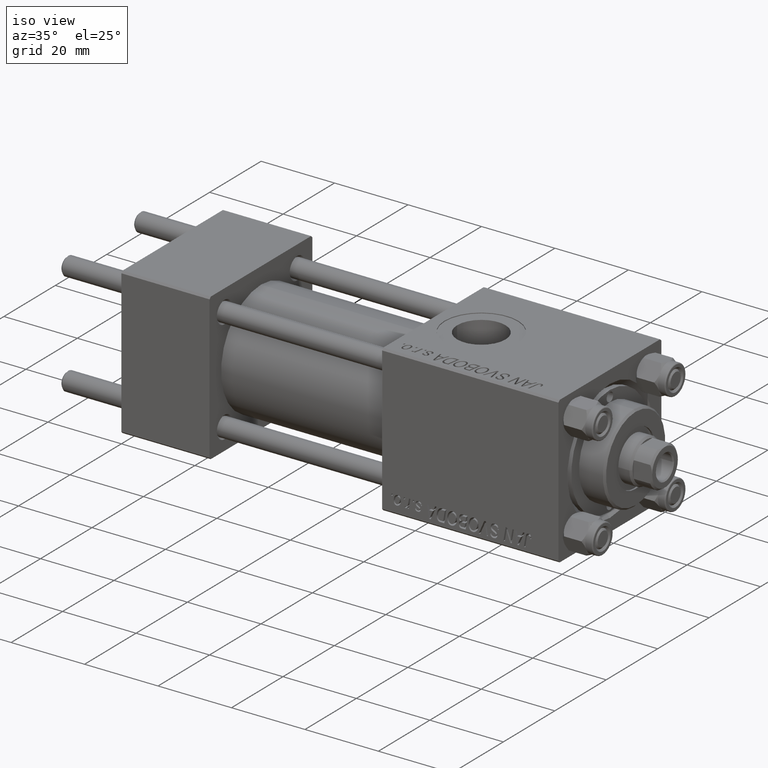
[diagram: clean part render]
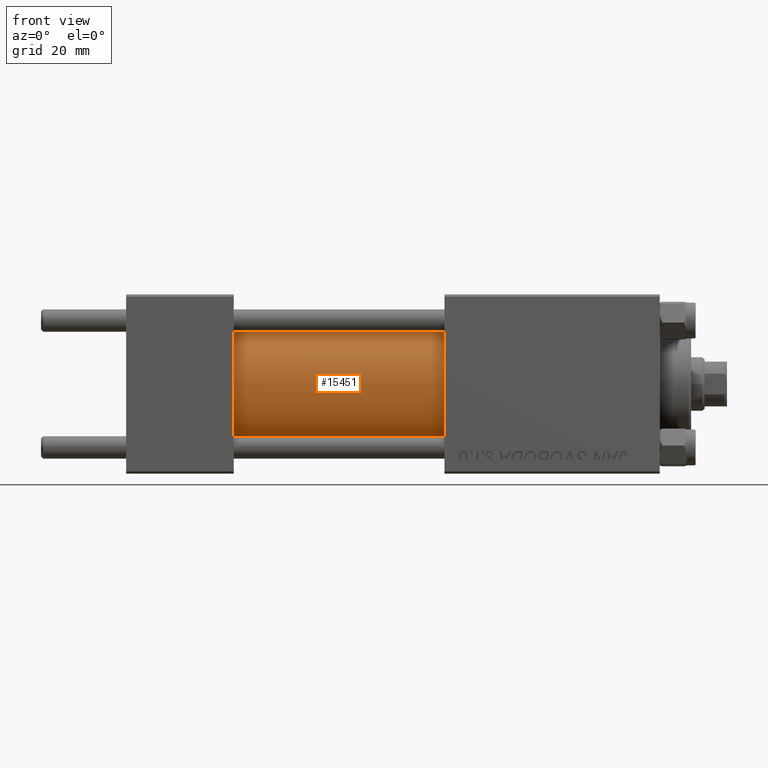
[diagram: tour spotlight — one face highlighted and labeled with its STEP entity id]
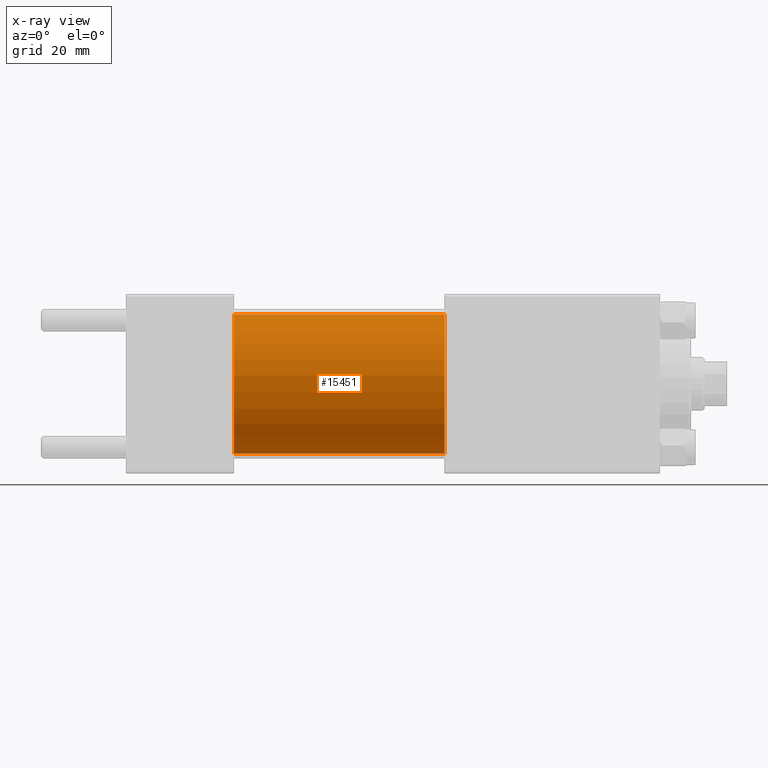
[diagram: x-ray of the same camera — body ghosted, this tour face saturated]
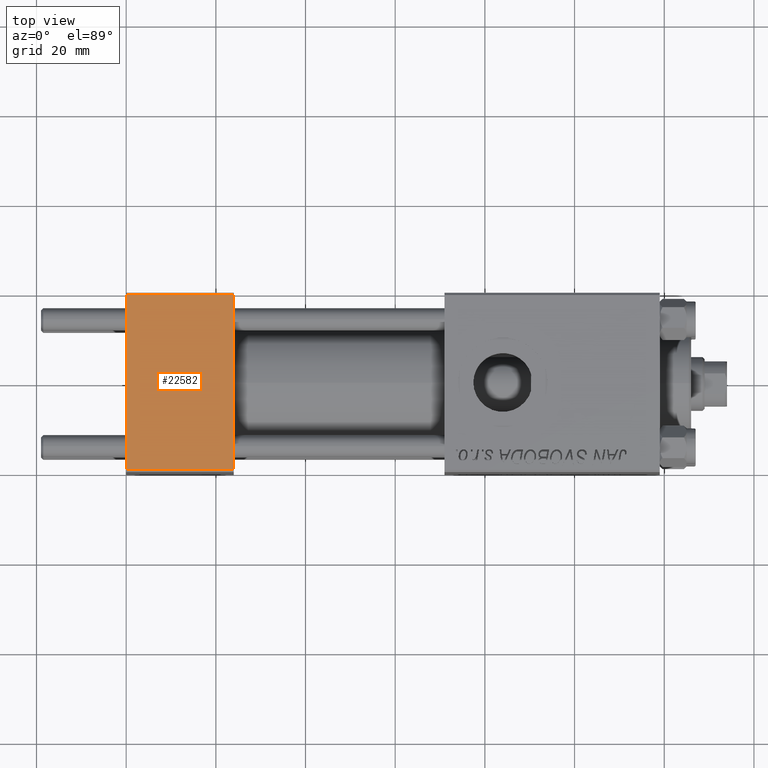
[diagram: tour spotlight — one face highlighted and labeled with its STEP entity id]
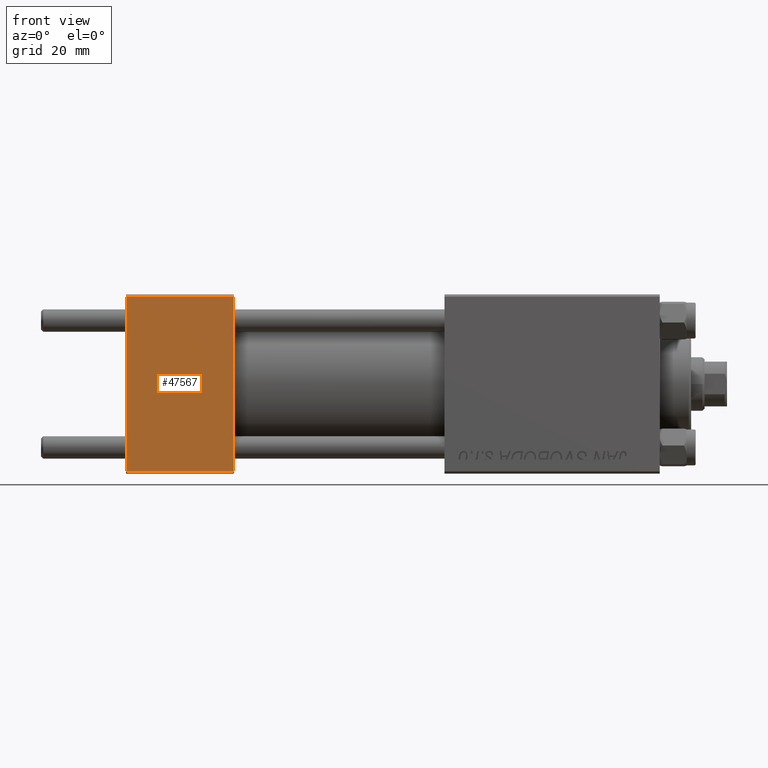
[diagram: tour spotlight — one face highlighted and labeled with its STEP entity id]
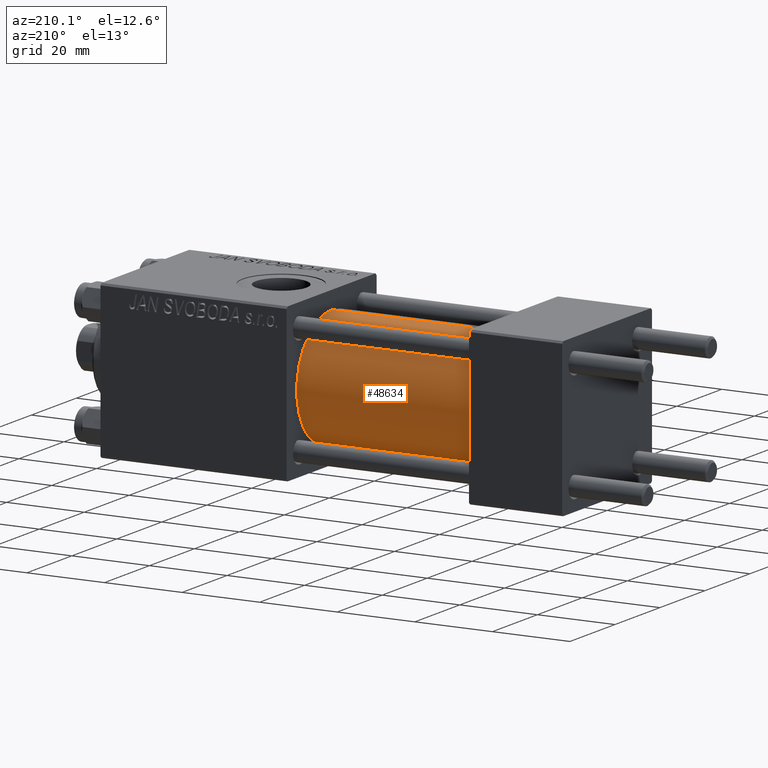
[diagram: tour spotlight — one face highlighted and labeled with its STEP entity id]
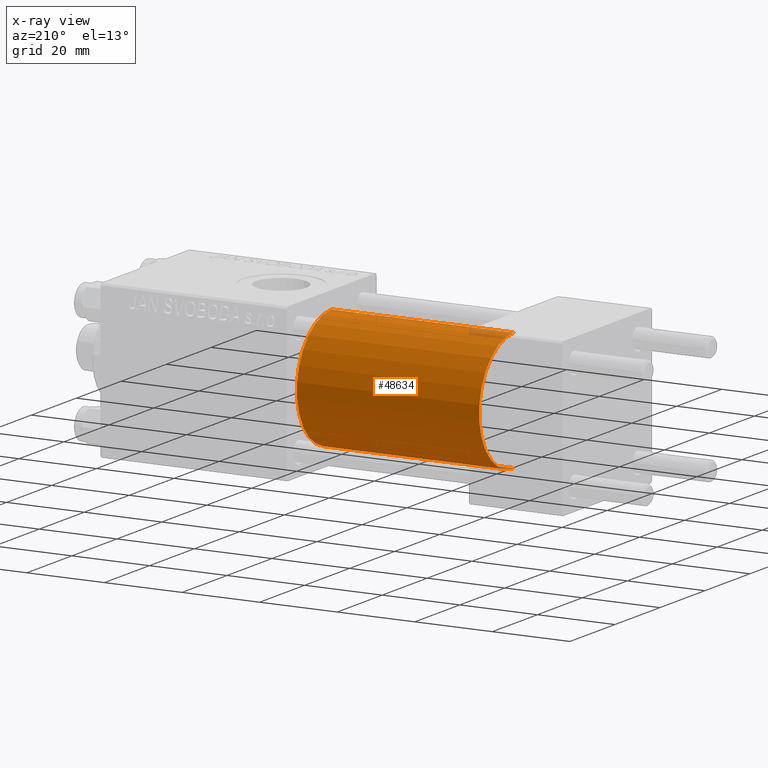
[diagram: x-ray of the same camera — body ghosted, this tour face saturated]
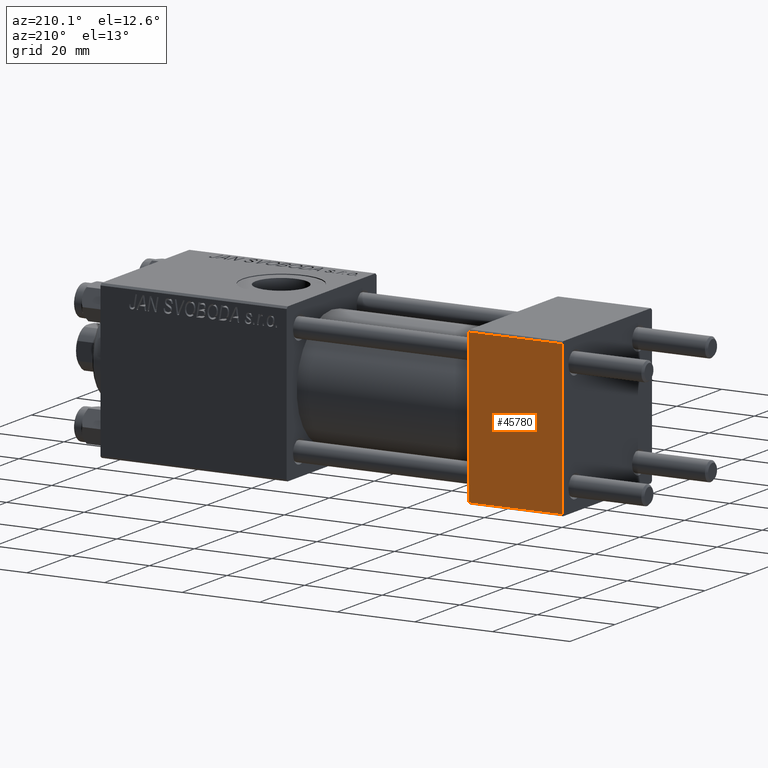
[diagram: tour spotlight — one face highlighted and labeled with its STEP entity id]
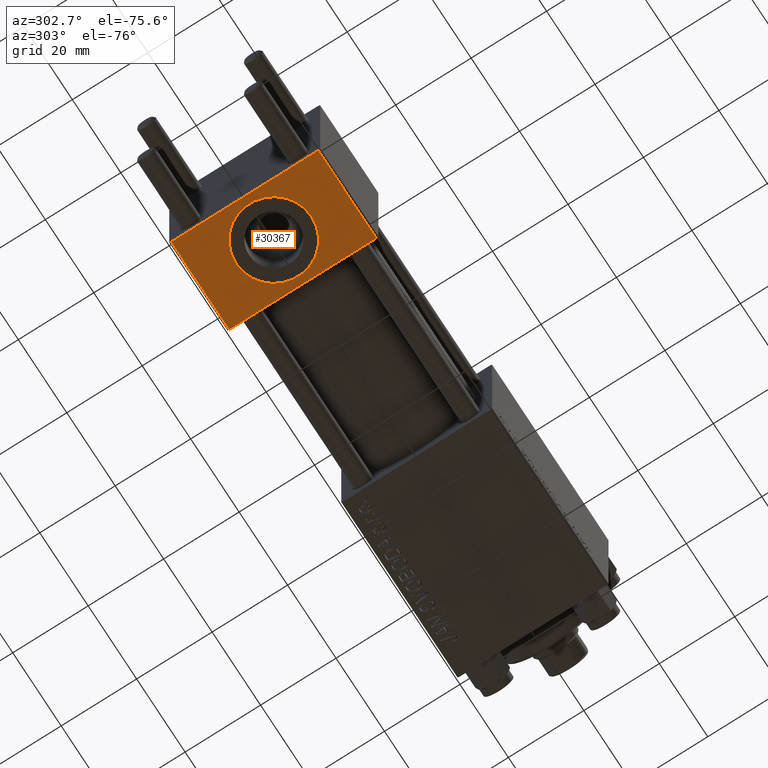
[diagram: tour spotlight — one face highlighted and labeled with its STEP entity id]
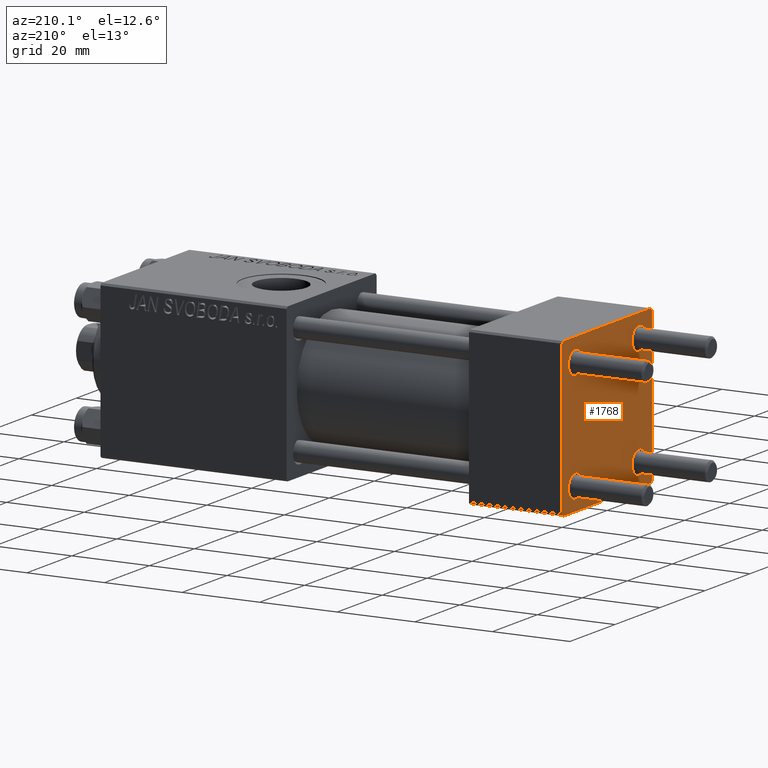
[diagram: tour spotlight — one face highlighted and labeled with its STEP entity id]
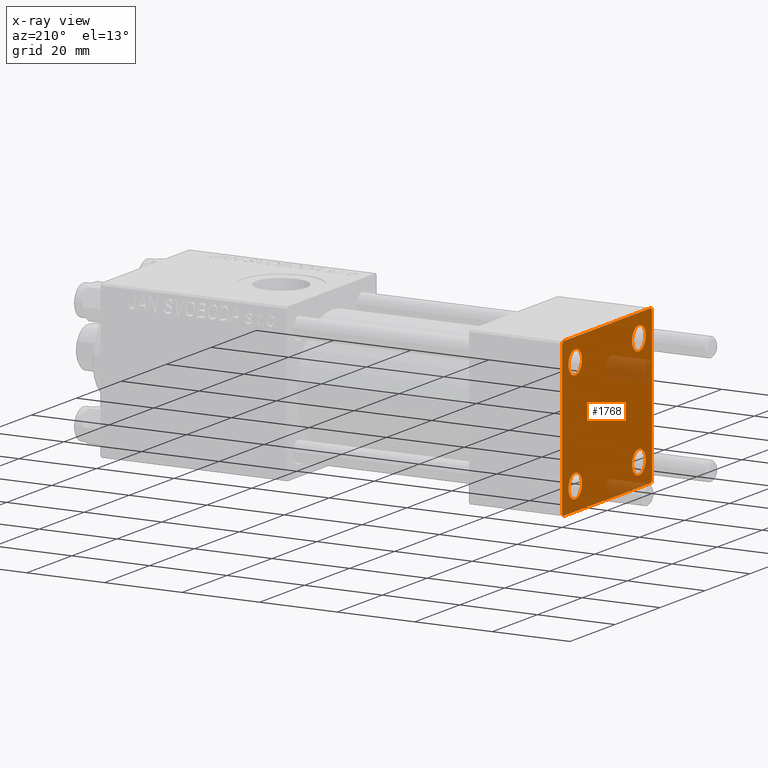
[diagram: x-ray of the same camera — body ghosted, this tour face saturated]
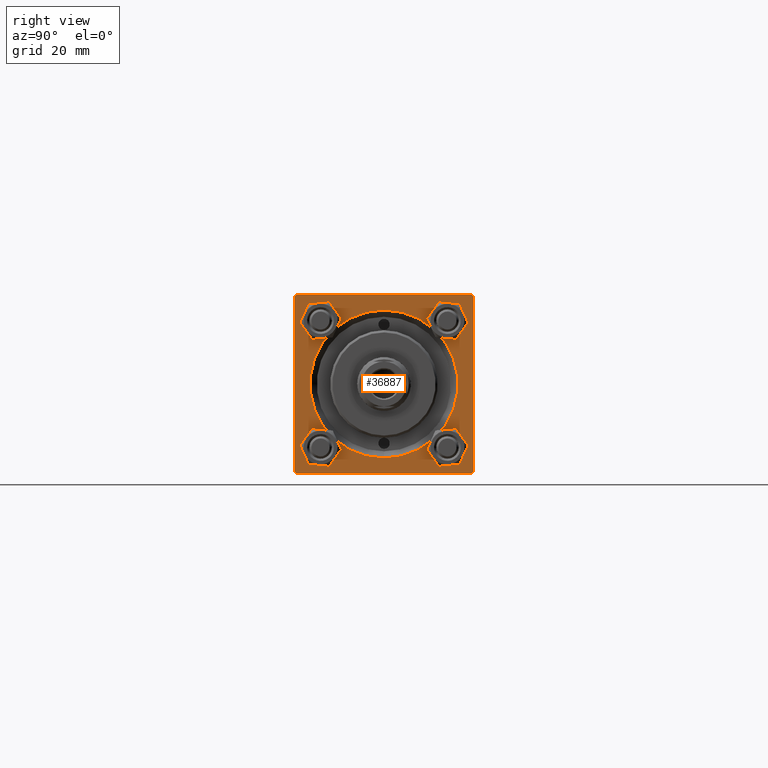
[diagram: tour spotlight — one face highlighted and labeled with its STEP entity id]
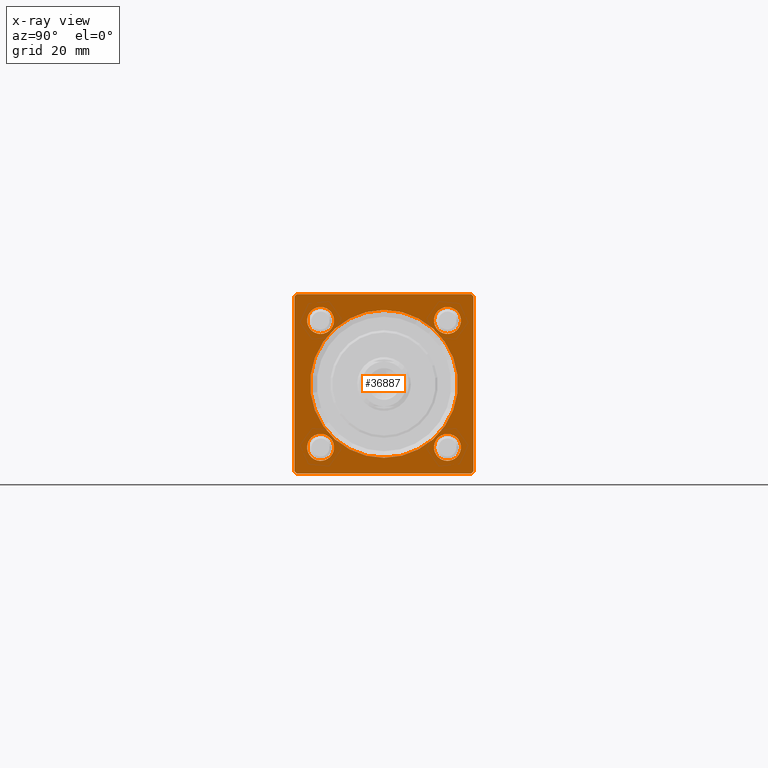
[diagram: x-ray of the same camera — body ghosted, this tour face saturated]
A machine part: a face-by-face anatomy tour. The part has 1137 B-rep faces; the first image is the clean iso view, then the 8 largest visible faces are spotlighted one at a time (largest first), each with its STEP entity span.

Face 1 — front view, entity #15451. An x-ray twin of the same camera follows (body ghosted, this face saturated) — the face is partly hidden behind the body. In plain terms, the highlighted cylindrical surface (partial cylindrical patch) has radius 15.5 mm, axis along (-1, -0, -0).
Definition (entity closure, byte-faithful):
#612 = DIRECTION ( 'NONE',  ( -1.000000000000000000, -0.000000000000000000, -0.000000000000000000 ) ) ;
#1934 = AXIS2_PLACEMENT_3D ( 'NONE', #18432, #21978, #48761 ) ;
#2474 = EDGE_CURVE ( 'NONE', #29877, #27376, #27337, .T. ) ;
#6469 = CARTESIAN_POINT ( 'NONE',  ( 71.00000000000001421, 1.898202538678397557E-15, -15.50000000000000000 ) ) ;
#6918 = AXIS2_PLACEMENT_3D ( 'NONE', #44764, #26041, #33381 ) ;
#9521 = DIRECTION ( 'NONE',  ( -1.000000000000000000, -0.000000000000000000, -0.000000000000000000 ) ) ;
#12245 = CARTESIAN_POINT ( 'NONE',  ( 71.00000000000001421, 0.000000000000000000, 0.000000000000000000 ) ) ;
#15451 = ADVANCED_FACE ( 'NONE', ( #39230 ), #23058, .T. ) ;
#15775 = CIRCLE ( 'NONE', #6918, 15.50000000000000000 ) ;
#15919 = ORIENTED_EDGE ( 'NONE', *, *, #45567, .F. ) ;
#17064 = CARTESIAN_POINT ( 'NONE',  ( 71.00000000000001421, 1.898202538678397557E-15, -15.50000000000000000 ) ) ;
#18432 = CARTESIAN_POINT ( 'NONE',  ( 24.00000000000000000, 0.000000000000000000, 0.000000000000000000 ) ) ;
#19483 = VERTEX_POINT ( 'NONE', #20434 ) ;
#20266 = CARTESIAN_POINT ( 'NONE',  ( 24.00000000000000000, 0.000000000000000000, 15.50000000000000000 ) ) ;
#20434 = CARTESIAN_POINT ( 'NONE',  ( 24.00000000000000000, 1.898202538678397557E-15, -15.50000000000000000 ) ) ;
#21742 = VECTOR ( 'NONE', #612, 1000.000000000000000 ) ;
#21828 = EDGE_CURVE ( 'NONE', #27376, #19483, #23700, .T. ) ;
#21978 = DIRECTION ( 'NONE',  ( 1.000000000000000000, 0.000000000000000000, 0.000000000000000000 ) ) ;
#23058 = CYLINDRICAL_SURFACE ( 'NONE', #49465, 15.50000000000000000 ) ;
#23700 = CIRCLE ( 'NONE', #1934, 15.50000000000000000 ) ;
#24935 = VERTEX_POINT ( 'NONE', #6469 ) ;
#25870 = LINE ( 'NONE', #17064, #44683 ) ;
#26041 = DIRECTION ( 'NONE',  ( 1.000000000000000000, 0.000000000000000000, 0.000000000000000000 ) ) ;
#27337 = LINE ( 'NONE', #47082, #21742 ) ;
#27376 = VERTEX_POINT ( 'NONE', #20266 ) ;
#27738 = ORIENTED_EDGE ( 'NONE', *, *, #42379, .F. ) ;
#29877 = VERTEX_POINT ( 'NONE', #37651 ) ;
#30873 = DIRECTION ( 'NONE',  ( -1.000000000000000000, -0.000000000000000000, -0.000000000000000000 ) ) ;
#31471 = EDGE_LOOP ( 'NONE', ( #27738, #15919, #32517, #36708 ) ) ;
#32517 = ORIENTED_EDGE ( 'NONE', *, *, #2474, .T. ) ;
#33381 = DIRECTION ( 'NONE',  ( 0.000000000000000000, 0.000000000000000000, -1.000000000000000000 ) ) ;
#35165 = DIRECTION ( 'NONE',  ( 0.000000000000000000, 0.000000000000000000, 1.000000000000000000 ) ) ;
#36708 = ORIENTED_EDGE ( 'NONE', *, *, #21828, .T. ) ;
#37651 = CARTESIAN_POINT ( 'NONE',  ( 71.00000000000001421, 0.000000000000000000, 15.50000000000000000 ) ) ;
#39230 = FACE_OUTER_BOUND ( 'NONE', #31471, .T. ) ;
#42379 = EDGE_CURVE ( 'NONE', #24935, #19483, #25870, .T. ) ;
#44683 = VECTOR ( 'NONE', #9521, 1000.000000000000000 ) ;
#44764 = CARTESIAN_POINT ( 'NONE',  ( 71.00000000000001421, 0.000000000000000000, 0.000000000000000000 ) ) ;
#45567 = EDGE_CURVE ( 'NONE', #29877, #24935, #15775, .T. ) ;
#47082 = CARTESIAN_POINT ( 'NONE',  ( 71.00000000000001421, 0.000000000000000000, 15.50000000000000000 ) ) ;
#48761 = DIRECTION ( 'NONE',  ( 0.000000000000000000, 0.000000000000000000, 1.000000000000000000 ) ) ;
#49465 = AXIS2_PLACEMENT_3D ( 'NONE', #12245, #30873, #35165 ) ;

Face 2 — top view, entity #22582. In plain terms, the highlighted planar face has unit normal (0, 0, -1).
Definition (entity closure, byte-faithful):
#389 = ORIENTED_EDGE ( 'NONE', *, *, #13616, .T. ) ;
#1690 = VECTOR ( 'NONE', #11676, 1000.000000000000000 ) ;
#2427 = CARTESIAN_POINT ( 'NONE',  ( 24.00000000000000000, -19.49999999999999289, 19.99999999999998934 ) ) ;
#2945 = VECTOR ( 'NONE', #8263, 1000.000000000000000 ) ;
#5722 = CARTESIAN_POINT ( 'NONE',  ( 0.000000000000000000, 19.50000000000000000, 20.00000000000000000 ) ) ;
#5751 = CARTESIAN_POINT ( 'NONE',  ( 0.000000000000000000, -19.49999999999999289, 19.99999999999998934 ) ) ;
#5907 = CARTESIAN_POINT ( 'NONE',  ( 24.00000000000000000, 19.50000000000000000, 20.00000000000000000 ) ) ;
#7152 = FACE_OUTER_BOUND ( 'NONE', #42290, .T. ) ;
#8263 = DIRECTION ( 'NONE',  ( 0.000000000000000000, -1.000000000000000000, -2.602085213965210149E-16 ) ) ;
#8401 = CARTESIAN_POINT ( 'NONE',  ( 24.00000000000000000, -19.49999999999999289, 19.99999999999998934 ) ) ;
#9153 = DIRECTION ( 'NONE',  ( 1.000000000000000000, 0.000000000000000000, 0.000000000000000000 ) ) ;
#10710 = EDGE_CURVE ( 'NONE', #36217, #46534, #46737, .T. ) ;
#11676 = DIRECTION ( 'NONE',  ( 0.000000000000000000, -1.000000000000000000, -2.602085213965210149E-16 ) ) ;
#13616 = EDGE_CURVE ( 'NONE', #31976, #46534, #39183, .T. ) ;
#15222 = DIRECTION ( 'NONE',  ( 0.000000000000000000, 2.602085213965210149E-16, -1.000000000000000000 ) ) ;
#18494 = LINE ( 'NONE', #26537, #31904 ) ;
#20343 = LINE ( 'NONE', #31443, #2945 ) ;
#21627 = ORIENTED_EDGE ( 'NONE', *, *, #24116, .T. ) ;
#22524 = PLANE ( 'NONE',  #33444 ) ;
#22582 = ADVANCED_FACE ( 'NONE', ( #7152 ), #22524, .F. ) ;
#24116 = EDGE_CURVE ( 'NONE', #32340, #31976, #20343, .T. ) ;
#26537 = CARTESIAN_POINT ( 'NONE',  ( 0.000000000000000000, 19.50000000000000000, 20.00000000000000000 ) ) ;
#29209 = VECTOR ( 'NONE', #9153, 1000.000000000000000 ) ;
#30585 = DIRECTION ( 'NONE',  ( 0.000000000000000000, 1.000000000000000000, 2.602085213965210149E-16 ) ) ;
#31443 = CARTESIAN_POINT ( 'NONE',  ( 0.000000000000000000, 20.00000000000000000, 20.00000000000000000 ) ) ;
#31904 = VECTOR ( 'NONE', #33887, 1000.000000000000000 ) ;
#31976 = VERTEX_POINT ( 'NONE', #5751 ) ;
#32340 = VERTEX_POINT ( 'NONE', #5722 ) ;
#33444 = AXIS2_PLACEMENT_3D ( 'NONE', #49569, #15222, #30585 ) ;
#33887 = DIRECTION ( 'NONE',  ( -1.000000000000000000, 0.000000000000000000, 0.000000000000000000 ) ) ;
#35769 = ORIENTED_EDGE ( 'NONE', *, *, #10710, .F. ) ;
#36217 = VERTEX_POINT ( 'NONE', #5907 ) ;
#39183 = LINE ( 'NONE', #8401, #29209 ) ;
#42290 = EDGE_LOOP ( 'NONE', ( #21627, #389, #35769, #46584 ) ) ;
#46069 = EDGE_CURVE ( 'NONE', #36217, #32340, #18494, .T. ) ;
#46236 = CARTESIAN_POINT ( 'NONE',  ( 24.00000000000000000, 20.00000000000000000, 20.00000000000000000 ) ) ;
#46534 = VERTEX_POINT ( 'NONE', #2427 ) ;
#46584 = ORIENTED_EDGE ( 'NONE', *, *, #46069, .T. ) ;
#46737 = LINE ( 'NONE', #46236, #1690 ) ;
#49569 = CARTESIAN_POINT ( 'NONE',  ( 24.00000000000000000, 20.00000000000000000, 20.00000000000000000 ) ) ;

Face 3 — front view, entity #47567. In plain terms, the highlighted planar face has unit normal (0, 1, 0).
Definition (entity closure, byte-faithful):
#2181 = EDGE_CURVE ( 'NONE', #8097, #6173, #8528, .T. ) ;
#2943 = AXIS2_PLACEMENT_3D ( 'NONE', #49092, #37480, #28671 ) ;
#4209 = DIRECTION ( 'NONE',  ( 0.000000000000000000, 8.673617379884036705E-17, -1.000000000000000000 ) ) ;
#4529 = EDGE_CURVE ( 'NONE', #32096, #35407, #30530, .T. ) ;
#4952 = CARTESIAN_POINT ( 'NONE',  ( 0.000000000000000000, -20.00000000000000355, 19.49999999999998224 ) ) ;
#6173 = VERTEX_POINT ( 'NONE', #22255 ) ;
#8097 = VERTEX_POINT ( 'NONE', #4952 ) ;
#8198 = VECTOR ( 'NONE', #41597, 1000.000000000000000 ) ;
#8528 = LINE ( 'NONE', #20095, #41894 ) ;
#10565 = LINE ( 'NONE', #22146, #8198 ) ;
#15024 = VECTOR ( 'NONE', #15336, 1000.000000000000000 ) ;
#15336 = DIRECTION ( 'NONE',  ( 1.000000000000000000, 0.000000000000000000, 0.000000000000000000 ) ) ;
#15665 = ORIENTED_EDGE ( 'NONE', *, *, #31256, .T. ) ;
#18611 = LINE ( 'NONE', #46630, #15024 ) ;
#20095 = CARTESIAN_POINT ( 'NONE',  ( 0.000000000000000000, -20.00000000000000355, 19.99999999999998934 ) ) ;
#20926 = ORIENTED_EDGE ( 'NONE', *, *, #2181, .T. ) ;
#22146 = CARTESIAN_POINT ( 'NONE',  ( 24.00000000000000000, -20.00000000000000355, 19.49999999999998224 ) ) ;
#22255 = CARTESIAN_POINT ( 'NONE',  ( 0.000000000000000000, -20.00000000000000000, -19.49999999999999645 ) ) ;
#24683 = EDGE_CURVE ( 'NONE', #6173, #35407, #18611, .T. ) ;
#26075 = ORIENTED_EDGE ( 'NONE', *, *, #4529, .F. ) ;
#27400 = VECTOR ( 'NONE', #49019, 1000.000000000000000 ) ;
#28671 = DIRECTION ( 'NONE',  ( 0.000000000000000000, -8.673617379884036705E-17, 1.000000000000000000 ) ) ;
#29953 = CARTESIAN_POINT ( 'NONE',  ( 24.00000000000000000, -20.00000000000000355, 19.49999999999998224 ) ) ;
#30530 = LINE ( 'NONE', #45712, #27400 ) ;
#31256 = EDGE_CURVE ( 'NONE', #32096, #8097, #10565, .T. ) ;
#32096 = VERTEX_POINT ( 'NONE', #29953 ) ;
#32222 = FACE_OUTER_BOUND ( 'NONE', #35223, .T. ) ;
#35223 = EDGE_LOOP ( 'NONE', ( #20926, #38214, #26075, #15665 ) ) ;
#35407 = VERTEX_POINT ( 'NONE', #36821 ) ;
#36821 = CARTESIAN_POINT ( 'NONE',  ( 24.00000000000000000, -20.00000000000000000, -19.49999999999999645 ) ) ;
#37480 = DIRECTION ( 'NONE',  ( -0.000000000000000000, 1.000000000000000000, 8.673617379884036705E-17 ) ) ;
#38214 = ORIENTED_EDGE ( 'NONE', *, *, #24683, .T. ) ;
#41597 = DIRECTION ( 'NONE',  ( -1.000000000000000000, 0.000000000000000000, 0.000000000000000000 ) ) ;
#41894 = VECTOR ( 'NONE', #4209, 1000.000000000000000 ) ;
#43621 = PLANE ( 'NONE',  #2943 ) ;
#45712 = CARTESIAN_POINT ( 'NONE',  ( 24.00000000000000000, -20.00000000000000355, 19.99999999999998934 ) ) ;
#46630 = CARTESIAN_POINT ( 'NONE',  ( 24.00000000000000000, -20.00000000000000000, -19.49999999999999645 ) ) ;
#47567 = ADVANCED_FACE ( 'NONE', ( #32222 ), #43621, .F. ) ;
#49019 = DIRECTION ( 'NONE',  ( 0.000000000000000000, 8.673617379884036705E-17, -1.000000000000000000 ) ) ;
#49092 = CARTESIAN_POINT ( 'NONE',  ( 24.00000000000000000, -20.00000000000000355, 19.99999999999998934 ) ) ;

Face 4 — auxiliary view, entity #48634. An x-ray twin of the same camera follows (body ghosted, this face saturated) — the face is partly hidden behind the body. In plain terms, the highlighted cylindrical surface (partial cylindrical patch) has radius 15.5 mm, axis along (-1, -0, -0).
Definition (entity closure, byte-faithful):
#612 = DIRECTION ( 'NONE',  ( -1.000000000000000000, -0.000000000000000000, -0.000000000000000000 ) ) ;
#2474 = EDGE_CURVE ( 'NONE', #29877, #27376, #27337, .T. ) ;
#5443 = CARTESIAN_POINT ( 'NONE',  ( 71.00000000000001421, 0.000000000000000000, 0.000000000000000000 ) ) ;
#6469 = CARTESIAN_POINT ( 'NONE',  ( 71.00000000000001421, 1.898202538678397557E-15, -15.50000000000000000 ) ) ;
#7555 = AXIS2_PLACEMENT_3D ( 'NONE', #37676, #48558, #22027 ) ;
#7937 = ORIENTED_EDGE ( 'NONE', *, *, #2474, .F. ) ;
#9293 = ORIENTED_EDGE ( 'NONE', *, *, #42379, .T. ) ;
#9521 = DIRECTION ( 'NONE',  ( -1.000000000000000000, -0.000000000000000000, -0.000000000000000000 ) ) ;
#11220 = CARTESIAN_POINT ( 'NONE',  ( 24.00000000000000000, 0.000000000000000000, 0.000000000000000000 ) ) ;
#16271 = EDGE_CURVE ( 'NONE', #24935, #29877, #23627, .T. ) ;
#17064 = CARTESIAN_POINT ( 'NONE',  ( 71.00000000000001421, 1.898202538678397557E-15, -15.50000000000000000 ) ) ;
#19483 = VERTEX_POINT ( 'NONE', #20434 ) ;
#20266 = CARTESIAN_POINT ( 'NONE',  ( 24.00000000000000000, 0.000000000000000000, 15.50000000000000000 ) ) ;
#20434 = CARTESIAN_POINT ( 'NONE',  ( 24.00000000000000000, 1.898202538678397557E-15, -15.50000000000000000 ) ) ;
#20581 = DIRECTION ( 'NONE',  ( -1.000000000000000000, -0.000000000000000000, -0.000000000000000000 ) ) ;
#21742 = VECTOR ( 'NONE', #612, 1000.000000000000000 ) ;
#22027 = DIRECTION ( 'NONE',  ( 0.000000000000000000, 0.000000000000000000, -1.000000000000000000 ) ) ;
#22792 = DIRECTION ( 'NONE',  ( 1.000000000000000000, 0.000000000000000000, 0.000000000000000000 ) ) ;
#23627 = CIRCLE ( 'NONE', #7555, 15.50000000000000000 ) ;
#24456 = ORIENTED_EDGE ( 'NONE', *, *, #16271, .F. ) ;
#24935 = VERTEX_POINT ( 'NONE', #6469 ) ;
#25870 = LINE ( 'NONE', #17064, #44683 ) ;
#27337 = LINE ( 'NONE', #47082, #21742 ) ;
#27376 = VERTEX_POINT ( 'NONE', #20266 ) ;
#29132 = DIRECTION ( 'NONE',  ( 0.000000000000000000, 0.000000000000000000, 1.000000000000000000 ) ) ;
#29877 = VERTEX_POINT ( 'NONE', #37651 ) ;
#31135 = CIRCLE ( 'NONE', #33559, 15.50000000000000000 ) ;
#33559 = AXIS2_PLACEMENT_3D ( 'NONE', #11220, #22792, #38456 ) ;
#34956 = ORIENTED_EDGE ( 'NONE', *, *, #47676, .T. ) ;
#35988 = CYLINDRICAL_SURFACE ( 'NONE', #44901, 15.50000000000000000 ) ;
#36732 = FACE_OUTER_BOUND ( 'NONE', #48038, .T. ) ;
#37651 = CARTESIAN_POINT ( 'NONE',  ( 71.00000000000001421, 0.000000000000000000, 15.50000000000000000 ) ) ;
#37676 = CARTESIAN_POINT ( 'NONE',  ( 71.00000000000001421, 0.000000000000000000, 0.000000000000000000 ) ) ;
#38456 = DIRECTION ( 'NONE',  ( 0.000000000000000000, 0.000000000000000000, 1.000000000000000000 ) ) ;
#42379 = EDGE_CURVE ( 'NONE', #24935, #19483, #25870, .T. ) ;
#44683 = VECTOR ( 'NONE', #9521, 1000.000000000000000 ) ;
#44901 = AXIS2_PLACEMENT_3D ( 'NONE', #5443, #20581, #29132 ) ;
#47082 = CARTESIAN_POINT ( 'NONE',  ( 71.00000000000001421, 0.000000000000000000, 15.50000000000000000 ) ) ;
#47676 = EDGE_CURVE ( 'NONE', #19483, #27376, #31135, .T. ) ;
#48038 = EDGE_LOOP ( 'NONE', ( #24456, #9293, #34956, #7937 ) ) ;
#48558 = DIRECTION ( 'NONE',  ( 1.000000000000000000, 0.000000000000000000, 0.000000000000000000 ) ) ;
#48634 = ADVANCED_FACE ( 'NONE', ( #36732 ), #35988, .T. ) ;

Face 5 — auxiliary view, entity #45780. In plain terms, the highlighted planar face has unit normal (0, 1, 0).
Definition (entity closure, byte-faithful):
#868 = DIRECTION ( 'NONE',  ( 0.000000000000000000, -0.000000000000000000, 1.000000000000000000 ) ) ;
#1539 = LINE ( 'NONE', #24016, #2699 ) ;
#2699 = VECTOR ( 'NONE', #43731, 1000.000000000000000 ) ;
#2711 = ORIENTED_EDGE ( 'NONE', *, *, #45778, .T. ) ;
#4911 = DIRECTION ( 'NONE',  ( 0.000000000000000000, 0.000000000000000000, -1.000000000000000000 ) ) ;
#6628 = ORIENTED_EDGE ( 'NONE', *, *, #22844, .F. ) ;
#10110 = VERTEX_POINT ( 'NONE', #43332 ) ;
#10408 = CARTESIAN_POINT ( 'NONE',  ( 0.000000000000000000, 20.00000000000000000, 20.00000000000000000 ) ) ;
#13006 = CARTESIAN_POINT ( 'NONE',  ( 24.00000000000000000, 20.00000000000000000, 20.00000000000000000 ) ) ;
#14506 = CARTESIAN_POINT ( 'NONE',  ( 24.00000000000000000, 20.00000000000000000, 19.49999999999999289 ) ) ;
#15782 = CARTESIAN_POINT ( 'NONE',  ( 24.00000000000000000, 20.00000000000000000, 20.00000000000000000 ) ) ;
#17833 = DIRECTION ( 'NONE',  ( 1.000000000000000000, 0.000000000000000000, 0.000000000000000000 ) ) ;
#19760 = VERTEX_POINT ( 'NONE', #14506 ) ;
#20297 = PLANE ( 'NONE',  #22216 ) ;
#20864 = ORIENTED_EDGE ( 'NONE', *, *, #32375, .T. ) ;
#20922 = CARTESIAN_POINT ( 'NONE',  ( 24.00000000000000000, 20.00000000000000000, -19.50000000000002132 ) ) ;
#21162 = VERTEX_POINT ( 'NONE', #27148 ) ;
#22216 = AXIS2_PLACEMENT_3D ( 'NONE', #15782, #24075, #868 ) ;
#22844 = EDGE_CURVE ( 'NONE', #10110, #21162, #26243, .T. ) ;
#24016 = CARTESIAN_POINT ( 'NONE',  ( 24.00000000000000000, 20.00000000000000000, -19.50000000000002132 ) ) ;
#24075 = DIRECTION ( 'NONE',  ( -0.000000000000000000, 1.000000000000000000, 0.000000000000000000 ) ) ;
#25891 = LINE ( 'NONE', #36264, #48551 ) ;
#26001 = DIRECTION ( 'NONE',  ( 0.000000000000000000, 0.000000000000000000, -1.000000000000000000 ) ) ;
#26243 = LINE ( 'NONE', #10408, #35860 ) ;
#26742 = VERTEX_POINT ( 'NONE', #20922 ) ;
#27148 = CARTESIAN_POINT ( 'NONE',  ( 0.000000000000000000, 20.00000000000000000, -19.50000000000002132 ) ) ;
#32375 = EDGE_CURVE ( 'NONE', #10110, #19760, #25891, .T. ) ;
#35860 = VECTOR ( 'NONE', #26001, 1000.000000000000000 ) ;
#35914 = VECTOR ( 'NONE', #4911, 1000.000000000000000 ) ;
#35953 = LINE ( 'NONE', #13006, #35914 ) ;
#36264 = CARTESIAN_POINT ( 'NONE',  ( 24.00000000000000000, 20.00000000000000000, 19.49999999999999289 ) ) ;
#36474 = EDGE_CURVE ( 'NONE', #26742, #21162, #1539, .T. ) ;
#39326 = EDGE_LOOP ( 'NONE', ( #2711, #48399, #6628, #20864 ) ) ;
#43299 = FACE_OUTER_BOUND ( 'NONE', #39326, .T. ) ;
#43332 = CARTESIAN_POINT ( 'NONE',  ( 0.000000000000000000, 20.00000000000000000, 19.49999999999999289 ) ) ;
#43731 = DIRECTION ( 'NONE',  ( -1.000000000000000000, 0.000000000000000000, 0.000000000000000000 ) ) ;
#45778 = EDGE_CURVE ( 'NONE', #19760, #26742, #35953, .T. ) ;
#45780 = ADVANCED_FACE ( 'NONE', ( #43299 ), #20297, .T. ) ;
#48399 = ORIENTED_EDGE ( 'NONE', *, *, #36474, .T. ) ;
#48551 = VECTOR ( 'NONE', #17833, 1000.000000000000000 ) ;

Face 6 — auxiliary view, entity #30367. In plain terms, the highlighted planar face has unit normal (0, -0, -1).
Definition (entity closure, byte-faithful):
#409 = EDGE_CURVE ( 'NONE', #13403, #7231, #20006, .T. ) ;
#1405 = DIRECTION ( 'NONE',  ( 0.000000000000000000, 1.000000000000000000, 0.000000000000000000 ) ) ;
#1656 = AXIS2_PLACEMENT_3D ( 'NONE', #43595, #8771, #21081 ) ;
#3076 = CARTESIAN_POINT ( 'NONE',  ( 24.00000000000000000, 19.50000000000000711, -20.00000000000000711 ) ) ;
#4113 = DIRECTION ( 'NONE',  ( 0.000000000000000000, -1.000000000000000000, 1.734723475976807094E-16 ) ) ;
#4490 = ORIENTED_EDGE ( 'NONE', *, *, #37665, .F. ) ;
#5931 = AXIS2_PLACEMENT_3D ( 'NONE', #36987, #17798, #1405 ) ;
#6243 = VERTEX_POINT ( 'NONE', #32847 ) ;
#6500 = DIRECTION ( 'NONE',  ( 0.000000000000000000, -1.734723475976806848E-16, -1.000000000000000000 ) ) ;
#6776 = VECTOR ( 'NONE', #29416, 1000.000000000000000 ) ;
#7231 = VERTEX_POINT ( 'NONE', #3076 ) ;
#7452 = EDGE_CURVE ( 'NONE', #7231, #30676, #47245, .T. ) ;
#7478 = ORIENTED_EDGE ( 'NONE', *, *, #7452, .T. ) ;
#8771 = DIRECTION ( 'NONE',  ( 0.000000000000000000, -1.734723475976806848E-16, -1.000000000000000000 ) ) ;
#9013 = EDGE_CURVE ( 'NONE', #6243, #25957, #49253, .T. ) ;
#9110 = ORIENTED_EDGE ( 'NONE', *, *, #409, .T. ) ;
#11247 = VECTOR ( 'NONE', #36396, 1000.000000000000000 ) ;
#12678 = DIRECTION ( 'NONE',  ( 0.000000000000000000, -1.000000000000000000, 1.734723475976807094E-16 ) ) ;
#12995 = AXIS2_PLACEMENT_3D ( 'NONE', #29448, #6500, #34408 ) ;
#13242 = VECTOR ( 'NONE', #4113, 1000.000000000000000 ) ;
#13403 = VERTEX_POINT ( 'NONE', #22039 ) ;
#14091 = FACE_BOUND ( 'NONE', #37289, .T. ) ;
#17798 = DIRECTION ( 'NONE',  ( 0.000000000000000000, -1.734723475976806848E-16, -1.000000000000000000 ) ) ;
#20006 = LINE ( 'NONE', #28557, #11247 ) ;
#20699 = CARTESIAN_POINT ( 'NONE',  ( 24.00000000000000000, 20.00000000000000000, -20.00000000000000711 ) ) ;
#21081 = DIRECTION ( 'NONE',  ( 0.000000000000000000, 1.000000000000000000, 0.000000000000000000 ) ) ;
#21434 = ORIENTED_EDGE ( 'NONE', *, *, #40503, .F. ) ;
#21597 = LINE ( 'NONE', #36248, #6776 ) ;
#22039 = CARTESIAN_POINT ( 'NONE',  ( 0.000000000000000000, 19.50000000000000711, -20.00000000000000711 ) ) ;
#25957 = VERTEX_POINT ( 'NONE', #26855 ) ;
#26806 = LINE ( 'NONE', #38455, #13242 ) ;
#26855 = CARTESIAN_POINT ( 'NONE',  ( 12.00000000000000178, -10.00000000000000711, -20.00000000000000355 ) ) ;
#27673 = ORIENTED_EDGE ( 'NONE', *, *, #9013, .F. ) ;
#28557 = CARTESIAN_POINT ( 'NONE',  ( 24.00000000000000000, 19.50000000000000711, -20.00000000000000711 ) ) ;
#29416 = DIRECTION ( 'NONE',  ( -1.000000000000000000, 0.000000000000000000, 0.000000000000000000 ) ) ;
#29448 = CARTESIAN_POINT ( 'NONE',  ( 24.00000000000000000, 20.00000000000000000, -20.00000000000000711 ) ) ;
#30092 = CIRCLE ( 'NONE', #5931, 10.00000000000000178 ) ;
#30367 = ADVANCED_FACE ( 'NONE', ( #14091, #32969 ), #40837, .T. ) ;
#30676 = VERTEX_POINT ( 'NONE', #44001 ) ;
#32847 = CARTESIAN_POINT ( 'NONE',  ( 12.00000000000000000, 9.999999999999996447, -20.00000000000000355 ) ) ;
#32969 = FACE_OUTER_BOUND ( 'NONE', #48657, .T. ) ;
#33872 = VECTOR ( 'NONE', #12678, 1000.000000000000000 ) ;
#34408 = DIRECTION ( 'NONE',  ( 0.000000000000000000, 1.000000000000000000, -1.734723475976806848E-16 ) ) ;
#36248 = CARTESIAN_POINT ( 'NONE',  ( 0.000000000000000000, -19.50000000000000711, -20.00000000000000000 ) ) ;
#36396 = DIRECTION ( 'NONE',  ( 1.000000000000000000, 0.000000000000000000, 0.000000000000000000 ) ) ;
#36987 = CARTESIAN_POINT ( 'NONE',  ( 12.00000000000000000, -4.939023110930437544E-15, -20.00000000000000355 ) ) ;
#37289 = EDGE_LOOP ( 'NONE', ( #27673, #21434 ) ) ;
#37665 = EDGE_CURVE ( 'NONE', #13403, #49696, #26806, .T. ) ;
#38455 = CARTESIAN_POINT ( 'NONE',  ( 0.000000000000000000, 20.00000000000000000, -20.00000000000000711 ) ) ;
#38727 = CARTESIAN_POINT ( 'NONE',  ( 0.000000000000000000, -19.50000000000000711, -20.00000000000000000 ) ) ;
#40503 = EDGE_CURVE ( 'NONE', #25957, #6243, #30092, .T. ) ;
#40837 = PLANE ( 'NONE',  #12995 ) ;
#42357 = EDGE_CURVE ( 'NONE', #30676, #49696, #21597, .T. ) ;
#43595 = CARTESIAN_POINT ( 'NONE',  ( 12.00000000000000000, -4.939023110930437544E-15, -20.00000000000000355 ) ) ;
#44001 = CARTESIAN_POINT ( 'NONE',  ( 24.00000000000000000, -19.50000000000000711, -20.00000000000000000 ) ) ;
#46730 = ORIENTED_EDGE ( 'NONE', *, *, #42357, .T. ) ;
#47245 = LINE ( 'NONE', #20699, #33872 ) ;
#48657 = EDGE_LOOP ( 'NONE', ( #4490, #9110, #7478, #46730 ) ) ;
#49253 = CIRCLE ( 'NONE', #1656, 10.00000000000000178 ) ;
#49696 = VERTEX_POINT ( 'NONE', #38727 ) ;

Face 7 — auxiliary view, entity #1768. An x-ray twin of the same camera follows (body ghosted, this face saturated) — the face is partly hidden behind the body. In plain terms, the highlighted planar face has unit normal (-1, 0, 0).
Definition (entity closure, byte-faithful):
#93 = VECTOR ( 'NONE', #33302, 1000.000000000000000 ) ;
#977 = DIRECTION ( 'NONE',  ( 0.000000000000000000, 0.000000000000000000, 1.000000000000000000 ) ) ;
#1483 = CARTESIAN_POINT ( 'NONE',  ( 0.000000000000000000, 14.14999999999999858, 11.14999999999999858 ) ) ;
#1768 = ADVANCED_FACE ( 'NONE', ( #47744, #32563, #17430, #40165, #28764 ), #24733, .T. ) ;
#2181 = EDGE_CURVE ( 'NONE', #8097, #6173, #8528, .T. ) ;
#2425 = ORIENTED_EDGE ( 'NONE', *, *, #22844, .T. ) ;
#2945 = VECTOR ( 'NONE', #8263, 1000.000000000000000 ) ;
#3222 = DIRECTION ( 'NONE',  ( 1.000000000000000000, 0.000000000000000000, 0.000000000000000000 ) ) ;
#3614 = EDGE_CURVE ( 'NONE', #49956, #39702, #26574, .T. ) ;
#3628 = VERTEX_POINT ( 'NONE', #1483 ) ;
#4113 = DIRECTION ( 'NONE',  ( 0.000000000000000000, -1.000000000000000000, 1.734723475976807094E-16 ) ) ;
#4209 = DIRECTION ( 'NONE',  ( 0.000000000000000000, 8.673617379884036705E-17, -1.000000000000000000 ) ) ;
#4693 = VERTEX_POINT ( 'NONE', #12149 ) ;
#4767 = DIRECTION ( 'NONE',  ( 1.000000000000000000, 0.000000000000000000, 0.000000000000000000 ) ) ;
#4952 = CARTESIAN_POINT ( 'NONE',  ( 0.000000000000000000, -20.00000000000000355, 19.49999999999998224 ) ) ;
#5263 = ORIENTED_EDGE ( 'NONE', *, *, #9593, .T. ) ;
#5595 = ORIENTED_EDGE ( 'NONE', *, *, #8636, .T. ) ;
#5609 = EDGE_LOOP ( 'NONE', ( #15871, #5595 ) ) ;
#5722 = CARTESIAN_POINT ( 'NONE',  ( 0.000000000000000000, 19.50000000000000000, 20.00000000000000000 ) ) ;
#5751 = CARTESIAN_POINT ( 'NONE',  ( 0.000000000000000000, -19.49999999999999289, 19.99999999999998934 ) ) ;
#5921 = EDGE_LOOP ( 'NONE', ( #38820, #46356 ) ) ;
#5934 = EDGE_LOOP ( 'NONE', ( #8048, #34709 ) ) ;
#6173 = VERTEX_POINT ( 'NONE', #22255 ) ;
#8029 = AXIS2_PLACEMENT_3D ( 'NONE', #44956, #33321, #44197 ) ;
#8048 = ORIENTED_EDGE ( 'NONE', *, *, #42598, .T. ) ;
#8097 = VERTEX_POINT ( 'NONE', #4952 ) ;
#8244 = VERTEX_POINT ( 'NONE', #11178 ) ;
#8263 = DIRECTION ( 'NONE',  ( 0.000000000000000000, -1.000000000000000000, -2.602085213965210149E-16 ) ) ;
#8528 = LINE ( 'NONE', #20095, #41894 ) ;
#8538 = DIRECTION ( 'NONE',  ( -0.000000000000000000, 0.7071067811865500152, 0.7071067811865451302 ) ) ;
#8636 = EDGE_CURVE ( 'NONE', #39702, #49956, #15365, .T. ) ;
#9094 = DIRECTION ( 'NONE',  ( 1.000000000000000000, 0.000000000000000000, 0.000000000000000000 ) ) ;
#9107 = DIRECTION ( 'NONE',  ( 1.000000000000000000, 0.000000000000000000, 0.000000000000000000 ) ) ;
#9593 = EDGE_CURVE ( 'NONE', #35919, #8244, #14592, .T. ) ;
#9776 = LINE ( 'NONE', #21605, #34096 ) ;
#10110 = VERTEX_POINT ( 'NONE', #43332 ) ;
#10408 = CARTESIAN_POINT ( 'NONE',  ( 0.000000000000000000, 20.00000000000000000, 20.00000000000000000 ) ) ;
#10873 = LINE ( 'NONE', #22200, #93 ) ;
#11178 = CARTESIAN_POINT ( 'NONE',  ( 0.000000000000000000, -14.14999999999999503, -11.15000000000000391 ) ) ;
#11936 = CARTESIAN_POINT ( 'NONE',  ( 0.000000000000000000, 14.14999999999999858, -11.15000000000000036 ) ) ;
#12149 = CARTESIAN_POINT ( 'NONE',  ( 0.000000000000000000, 14.14999999999999858, 17.15000000000000568 ) ) ;
#12491 = AXIS2_PLACEMENT_3D ( 'NONE', #13251, #17502, #44783 ) ;
#13242 = VECTOR ( 'NONE', #4113, 1000.000000000000000 ) ;
#13251 = CARTESIAN_POINT ( 'NONE',  ( 0.000000000000000000, 14.14999999999999858, 14.15000000000000036 ) ) ;
#13403 = VERTEX_POINT ( 'NONE', #22039 ) ;
#14047 = EDGE_CURVE ( 'NONE', #8097, #31976, #34257, .T. ) ;
#14261 = DIRECTION ( 'NONE',  ( 0.000000000000000000, -0.7071067811865401342, 0.7071067811865549002 ) ) ;
#14467 = VECTOR ( 'NONE', #14261, 1000.000000000000000 ) ;
#14592 = CIRCLE ( 'NONE', #19373, 3.000000000000000888 ) ;
#14654 = CARTESIAN_POINT ( 'NONE',  ( 0.000000000000000000, -14.14999999999999503, -14.15000000000000391 ) ) ;
#15365 = CIRCLE ( 'NONE', #46038, 3.000000000000000888 ) ;
#15555 = EDGE_LOOP ( 'NONE', ( #2425, #16849, #45553, #19248, #35853, #18952, #41985, #42171 ) ) ;
#15871 = ORIENTED_EDGE ( 'NONE', *, *, #3614, .T. ) ;
#16426 = AXIS2_PLACEMENT_3D ( 'NONE', #14654, #41661, #977 ) ;
#16653 = CARTESIAN_POINT ( 'NONE',  ( 0.000000000000000000, 14.14999999999999858, -14.15000000000000036 ) ) ;
#16849 = ORIENTED_EDGE ( 'NONE', *, *, #31039, .T. ) ;
#17100 = CIRCLE ( 'NONE', #31616, 3.000000000000000888 ) ;
#17125 = CARTESIAN_POINT ( 'NONE',  ( 0.000000000000000000, -14.14999999999999503, -14.15000000000000391 ) ) ;
#17430 = FACE_BOUND ( 'NONE', #5609, .T. ) ;
#17502 = DIRECTION ( 'NONE',  ( 1.000000000000000000, 0.000000000000000000, 0.000000000000000000 ) ) ;
#18112 = CIRCLE ( 'NONE', #12491, 3.000000000000000888 ) ;
#18559 = CARTESIAN_POINT ( 'NONE',  ( 0.000000000000000000, -14.14999999999999503, -17.15000000000000568 ) ) ;
#18952 = ORIENTED_EDGE ( 'NONE', *, *, #14047, .T. ) ;
#19083 = CARTESIAN_POINT ( 'NONE',  ( 0.000000000000000000, -14.14999999999999503, 14.15000000000000391 ) ) ;
#19248 = ORIENTED_EDGE ( 'NONE', *, *, #26317, .T. ) ;
#19373 = AXIS2_PLACEMENT_3D ( 'NONE', #17125, #9094, #28713 ) ;
#19393 = DIRECTION ( 'NONE',  ( 0.000000000000000000, 0.000000000000000000, 1.000000000000000000 ) ) ;
#20095 = CARTESIAN_POINT ( 'NONE',  ( 0.000000000000000000, -20.00000000000000355, 19.99999999999998934 ) ) ;
#20343 = LINE ( 'NONE', #31443, #2945 ) ;
#21162 = VERTEX_POINT ( 'NONE', #27148 ) ;
#21605 = CARTESIAN_POINT ( 'NONE',  ( -0.000000000000000000, 19.75000000000013500, 19.74999999999986144 ) ) ;
#22039 = CARTESIAN_POINT ( 'NONE',  ( 0.000000000000000000, 19.50000000000000711, -20.00000000000000711 ) ) ;
#22200 = CARTESIAN_POINT ( 'NONE',  ( -0.000000000000000000, 19.74999999999986855, -19.75000000000014211 ) ) ;
#22255 = CARTESIAN_POINT ( 'NONE',  ( 0.000000000000000000, -20.00000000000000000, -19.49999999999999645 ) ) ;
#22844 = EDGE_CURVE ( 'NONE', #10110, #21162, #26243, .T. ) ;
#23432 = CARTESIAN_POINT ( 'NONE',  ( 0.000000000000000000, 14.14999999999999858, -14.15000000000000036 ) ) ;
#24116 = EDGE_CURVE ( 'NONE', #32340, #31976, #20343, .T. ) ;
#24453 = DIRECTION ( 'NONE',  ( 0.000000000000000000, 0.000000000000000000, 1.000000000000000000 ) ) ;
#24733 = PLANE ( 'NONE',  #8029 ) ;
#25125 = DIRECTION ( 'NONE',  ( 0.000000000000000000, 0.7071067811865425767, -0.7071067811865525687 ) ) ;
#25220 = ORIENTED_EDGE ( 'NONE', *, *, #41117, .T. ) ;
#25569 = CARTESIAN_POINT ( 'NONE',  ( 0.000000000000000000, -19.75000000000020961, -19.74999999999979394 ) ) ;
#26001 = DIRECTION ( 'NONE',  ( 0.000000000000000000, 0.000000000000000000, -1.000000000000000000 ) ) ;
#26243 = LINE ( 'NONE', #10408, #35860 ) ;
#26317 = EDGE_CURVE ( 'NONE', #49696, #6173, #48837, .T. ) ;
#26507 = DIRECTION ( 'NONE',  ( 0.000000000000000000, 0.000000000000000000, 1.000000000000000000 ) ) ;
#26574 = CIRCLE ( 'NONE', #34622, 3.000000000000000888 ) ;
#26759 = DIRECTION ( 'NONE',  ( 1.000000000000000000, 0.000000000000000000, 0.000000000000000000 ) ) ;
#26806 = LINE ( 'NONE', #38455, #13242 ) ;
#27012 = CARTESIAN_POINT ( 'NONE',  ( 0.000000000000000000, 14.14999999999999858, 14.15000000000000036 ) ) ;
#27148 = CARTESIAN_POINT ( 'NONE',  ( 0.000000000000000000, 20.00000000000000000, -19.50000000000002132 ) ) ;
#28602 = CIRCLE ( 'NONE', #35064, 3.000000000000000888 ) ;
#28713 = DIRECTION ( 'NONE',  ( 0.000000000000000000, 0.000000000000000000, 1.000000000000000000 ) ) ;
#28764 = FACE_OUTER_BOUND ( 'NONE', #15555, .T. ) ;
#30927 = EDGE_LOOP ( 'NONE', ( #25220, #5263 ) ) ;
#30998 = CARTESIAN_POINT ( 'NONE',  ( 0.000000000000000000, -14.14999999999999503, 11.15000000000000213 ) ) ;
#31039 = EDGE_CURVE ( 'NONE', #21162, #13403, #10873, .T. ) ;
#31106 = VERTEX_POINT ( 'NONE', #30998 ) ;
#31443 = CARTESIAN_POINT ( 'NONE',  ( 0.000000000000000000, 20.00000000000000000, 20.00000000000000000 ) ) ;
#31616 = AXIS2_PLACEMENT_3D ( 'NONE', #27012, #26759, #26507 ) ;
#31976 = VERTEX_POINT ( 'NONE', #5751 ) ;
#32340 = VERTEX_POINT ( 'NONE', #5722 ) ;
#32502 = CIRCLE ( 'NONE', #16426, 3.000000000000000888 ) ;
#32563 = FACE_BOUND ( 'NONE', #30927, .T. ) ;
#33271 = CIRCLE ( 'NONE', #46995, 3.000000000000000888 ) ;
#33302 = DIRECTION ( 'NONE',  ( -0.000000000000000000, -0.7071067811865524577, -0.7071067811865426878 ) ) ;
#33304 = CARTESIAN_POINT ( 'NONE',  ( 0.000000000000000000, -14.14999999999999503, 17.15000000000000568 ) ) ;
#33321 = DIRECTION ( 'NONE',  ( -1.000000000000000000, 0.000000000000000000, -0.000000000000000000 ) ) ;
#34043 = VECTOR ( 'NONE', #8538, 1000.000000000000114 ) ;
#34096 = VECTOR ( 'NONE', #25125, 999.9999999999998863 ) ;
#34257 = LINE ( 'NONE', #49684, #34043 ) ;
#34477 = DIRECTION ( 'NONE',  ( 1.000000000000000000, 0.000000000000000000, 0.000000000000000000 ) ) ;
#34484 = EDGE_CURVE ( 'NONE', #3628, #4693, #17100, .T. ) ;
#34622 = AXIS2_PLACEMENT_3D ( 'NONE', #16653, #9107, #24453 ) ;
#34709 = ORIENTED_EDGE ( 'NONE', *, *, #34484, .T. ) ;
#35064 = AXIS2_PLACEMENT_3D ( 'NONE', #37072, #3222, #41619 ) ;
#35853 = ORIENTED_EDGE ( 'NONE', *, *, #2181, .F. ) ;
#35860 = VECTOR ( 'NONE', #26001, 1000.000000000000000 ) ;
#35880 = EDGE_CURVE ( 'NONE', #32340, #10110, #9776, .T. ) ;
#35919 = VERTEX_POINT ( 'NONE', #18559 ) ;
#37072 = CARTESIAN_POINT ( 'NONE',  ( 0.000000000000000000, -14.14999999999999503, 14.15000000000000391 ) ) ;
#37665 = EDGE_CURVE ( 'NONE', #13403, #49696, #26806, .T. ) ;
#38455 = CARTESIAN_POINT ( 'NONE',  ( 0.000000000000000000, 20.00000000000000000, -20.00000000000000711 ) ) ;
#38727 = CARTESIAN_POINT ( 'NONE',  ( 0.000000000000000000, -19.50000000000000711, -20.00000000000000000 ) ) ;
#38820 = ORIENTED_EDGE ( 'NONE', *, *, #44889, .T. ) ;
#39058 = EDGE_CURVE ( 'NONE', #31106, #42849, #33271, .T. ) ;
#39702 = VERTEX_POINT ( 'NONE', #47435 ) ;
#40165 = FACE_BOUND ( 'NONE', #5934, .T. ) ;
#41117 = EDGE_CURVE ( 'NONE', #8244, #35919, #32502, .T. ) ;
#41619 = DIRECTION ( 'NONE',  ( 0.000000000000000000, 0.000000000000000000, 1.000000000000000000 ) ) ;
#41661 = DIRECTION ( 'NONE',  ( 1.000000000000000000, 0.000000000000000000, 0.000000000000000000 ) ) ;
#41894 = VECTOR ( 'NONE', #4209, 1000.000000000000000 ) ;
#41985 = ORIENTED_EDGE ( 'NONE', *, *, #24116, .F. ) ;
#42171 = ORIENTED_EDGE ( 'NONE', *, *, #35880, .T. ) ;
#42598 = EDGE_CURVE ( 'NONE', #4693, #3628, #18112, .T. ) ;
#42849 = VERTEX_POINT ( 'NONE', #33304 ) ;
#43332 = CARTESIAN_POINT ( 'NONE',  ( 0.000000000000000000, 20.00000000000000000, 19.49999999999999289 ) ) ;
#44197 = DIRECTION ( 'NONE',  ( -0.000000000000000000, 0.000000000000000000, 1.000000000000000000 ) ) ;
#44783 = DIRECTION ( 'NONE',  ( 0.000000000000000000, 0.000000000000000000, 1.000000000000000000 ) ) ;
#44889 = EDGE_CURVE ( 'NONE', #42849, #31106, #28602, .T. ) ;
#44956 = CARTESIAN_POINT ( 'NONE',  ( 0.000000000000000000, 0.000000000000000000, 0.000000000000000000 ) ) ;
#45553 = ORIENTED_EDGE ( 'NONE', *, *, #37665, .T. ) ;
#46038 = AXIS2_PLACEMENT_3D ( 'NONE', #23432, #4767, #19393 ) ;
#46356 = ORIENTED_EDGE ( 'NONE', *, *, #39058, .T. ) ;
#46369 = DIRECTION ( 'NONE',  ( 0.000000000000000000, 0.000000000000000000, 1.000000000000000000 ) ) ;
#46995 = AXIS2_PLACEMENT_3D ( 'NONE', #19083, #34477, #46369 ) ;
#47435 = CARTESIAN_POINT ( 'NONE',  ( 0.000000000000000000, 14.14999999999999858, -17.15000000000000213 ) ) ;
#47744 = FACE_BOUND ( 'NONE', #5921, .T. ) ;
#48837 = LINE ( 'NONE', #25569, #14467 ) ;
#49684 = CARTESIAN_POINT ( 'NONE',  ( -0.000000000000000000, -19.74999999999992539, 19.75000000000006395 ) ) ;
#49696 = VERTEX_POINT ( 'NONE', #38727 ) ;
#49956 = VERTEX_POINT ( 'NONE', #11936 ) ;

Face 8 — right view, entity #36887. An x-ray twin of the same camera follows (body ghosted, this face saturated) — the face is partly hidden behind the body. In plain terms, the highlighted planar face has unit normal (-1, 0, 0).
Definition (entity closure, byte-faithful):
#11 = EDGE_CURVE ( 'NONE', #20883, #20115, #6334, .T. ) ;
#466 = CARTESIAN_POINT ( 'NONE',  ( 119.0000000000000142, 14.15000000000000036, -11.14999999999999680 ) ) ;
#1076 = ORIENTED_EDGE ( 'NONE', *, *, #34367, .T. ) ;
#1575 = LINE ( 'NONE', #24545, #42117 ) ;
#1629 = EDGE_LOOP ( 'NONE', ( #17899, #43758 ) ) ;
#1711 = CARTESIAN_POINT ( 'NONE',  ( 119.0000000000000142, -14.15000000000000036, 14.15000000000000036 ) ) ;
#2116 = FACE_BOUND ( 'NONE', #36267, .T. ) ;
#3139 = EDGE_CURVE ( 'NONE', #7619, #5418, #42718, .T. ) ;
#3575 = VERTEX_POINT ( 'NONE', #13625 ) ;
#3885 = EDGE_CURVE ( 'NONE', #27857, #32711, #29024, .T. ) ;
#4134 = CARTESIAN_POINT ( 'NONE',  ( 119.0000000000000142, 0.000000000000000000, 0.000000000000000000 ) ) ;
#4420 = AXIS2_PLACEMENT_3D ( 'NONE', #45638, #11818, #4467 ) ;
#4467 = DIRECTION ( 'NONE',  ( 0.000000000000000000, 0.000000000000000000, 1.000000000000000000 ) ) ;
#5329 = LINE ( 'NONE', #5567, #19588 ) ;
#5418 = VERTEX_POINT ( 'NONE', #40136 ) ;
#5419 = PLANE ( 'NONE',  #39818 ) ;
#5567 = CARTESIAN_POINT ( 'NONE',  ( 119.0000000000000142, 19.99999999999999645, -19.50000000000000000 ) ) ;
#5710 = EDGE_CURVE ( 'NONE', #5418, #7619, #45212, .T. ) ;
#6334 = CIRCLE ( 'NONE', #46649, 16.50000000000001421 ) ;
#6350 = CARTESIAN_POINT ( 'NONE',  ( 119.0000000000000142, 14.15000000000000036, 11.14999999999999858 ) ) ;
#6723 = DIRECTION ( 'NONE',  ( 0.000000000000000000, 0.000000000000000000, 1.000000000000000000 ) ) ;
#7091 = CARTESIAN_POINT ( 'NONE',  ( 119.0000000000000142, -19.50000000000002487, -20.00000000000000000 ) ) ;
#7467 = CARTESIAN_POINT ( 'NONE',  ( 119.0000000000000142, -20.00000000000000355, 19.99999999999999645 ) ) ;
#7619 = VERTEX_POINT ( 'NONE', #466 ) ;
#7719 = DIRECTION ( 'NONE',  ( 0.000000000000000000, 8.673617379884036705E-17, -1.000000000000000000 ) ) ;
#7887 = CARTESIAN_POINT ( 'NONE',  ( 119.0000000000000142, 19.99999999999999645, 19.49999999999998579 ) ) ;
#9100 = LINE ( 'NONE', #9347, #10852 ) ;
#9347 = CARTESIAN_POINT ( 'NONE',  ( 119.0000000000000142, 19.49999999999996803, 20.00000000000000000 ) ) ;
#9740 = EDGE_LOOP ( 'NONE', ( #28382, #34148 ) ) ;
#10011 = CARTESIAN_POINT ( 'NONE',  ( 119.0000000000000142, -14.15000000000000036, -14.15000000000000036 ) ) ;
#10159 = CARTESIAN_POINT ( 'NONE',  ( 119.0000000000000142, -14.15000000000000036, 14.15000000000000036 ) ) ;
#10274 = DIRECTION ( 'NONE',  ( 0.000000000000000000, 0.000000000000000000, 1.000000000000000000 ) ) ;
#10575 = AXIS2_PLACEMENT_3D ( 'NONE', #40081, #14089, #25145 ) ;
#10779 = LINE ( 'NONE', #11519, #44700 ) ;
#10852 = VECTOR ( 'NONE', #17130, 999.9999999999998863 ) ;
#11422 = DIRECTION ( 'NONE',  ( 0.000000000000000000, 0.000000000000000000, -1.000000000000000000 ) ) ;
#11519 = CARTESIAN_POINT ( 'NONE',  ( 119.0000000000000142, 19.99999999999999645, -20.00000000000000000 ) ) ;
#11726 = CIRCLE ( 'NONE', #4420, 3.000000000000004441 ) ;
#11818 = DIRECTION ( 'NONE',  ( -1.000000000000000000, -0.000000000000000000, -0.000000000000000000 ) ) ;
#11876 = EDGE_CURVE ( 'NONE', #46841, #49828, #42857, .T. ) ;
#12103 = VERTEX_POINT ( 'NONE', #19528 ) ;
#12658 = CARTESIAN_POINT ( 'NONE',  ( 119.0000000000000142, -14.15000000000000036, -11.14999999999999680 ) ) ;
#13625 = CARTESIAN_POINT ( 'NONE',  ( 119.0000000000000142, -20.00000000000000355, 19.50000000000002487 ) ) ;
#13827 = CARTESIAN_POINT ( 'NONE',  ( 119.0000000000000142, 14.15000000000000036, 14.15000000000000036 ) ) ;
#14089 = DIRECTION ( 'NONE',  ( -1.000000000000000000, -0.000000000000000000, -0.000000000000000000 ) ) ;
#14599 = DIRECTION ( 'NONE',  ( 0.000000000000000000, 0.000000000000000000, 1.000000000000000000 ) ) ;
#14617 = VERTEX_POINT ( 'NONE', #7091 ) ;
#14672 = CIRCLE ( 'NONE', #49344, 3.000000000000000888 ) ;
#14793 = LINE ( 'NONE', #41059, #39123 ) ;
#15113 = VERTEX_POINT ( 'NONE', #43118 ) ;
#16343 = EDGE_LOOP ( 'NONE', ( #46340, #17082 ) ) ;
#16432 = VERTEX_POINT ( 'NONE', #7887 ) ;
#16587 = EDGE_CURVE ( 'NONE', #15113, #12103, #5329, .T. ) ;
#17082 = ORIENTED_EDGE ( 'NONE', *, *, #32971, .T. ) ;
#17116 = DIRECTION ( 'NONE',  ( -1.000000000000000000, -0.000000000000000000, -0.000000000000000000 ) ) ;
#17130 = DIRECTION ( 'NONE',  ( 0.000000000000000000, -0.7071067811865574537, 0.7071067811865376918 ) ) ;
#17780 = AXIS2_PLACEMENT_3D ( 'NONE', #10011, #41042, #10274 ) ;
#17899 = ORIENTED_EDGE ( 'NONE', *, *, #3885, .T. ) ;
#18266 = EDGE_CURVE ( 'NONE', #16432, #49160, #9100, .T. ) ;
#19430 = CARTESIAN_POINT ( 'NONE',  ( 119.0000000000000142, 2.020667218593134678E-15, 16.50000000000001421 ) ) ;
#19528 = CARTESIAN_POINT ( 'NONE',  ( 119.0000000000000142, 19.99999999999999645, -19.50000000000000000 ) ) ;
#19588 = VECTOR ( 'NONE', #47743, 1000.000000000000114 ) ;
#20115 = VERTEX_POINT ( 'NONE', #19430 ) ;
#20883 = VERTEX_POINT ( 'NONE', #46686 ) ;
#20931 = AXIS2_PLACEMENT_3D ( 'NONE', #45090, #22351, #6723 ) ;
#22044 = CIRCLE ( 'NONE', #34926, 2.999999999999973355 ) ;
#22078 = EDGE_CURVE ( 'NONE', #15113, #14617, #10779, .T. ) ;
#22132 = ORIENTED_EDGE ( 'NONE', *, *, #45283, .T. ) ;
#22351 = DIRECTION ( 'NONE',  ( -1.000000000000000000, -0.000000000000000000, -0.000000000000000000 ) ) ;
#23059 = DIRECTION ( 'NONE',  ( 0.000000000000000000, 0.000000000000000000, 1.000000000000000000 ) ) ;
#23544 = DIRECTION ( 'NONE',  ( -1.000000000000000000, -0.000000000000000000, -0.000000000000000000 ) ) ;
#24336 = CARTESIAN_POINT ( 'NONE',  ( 119.0000000000000142, 0.000000000000000000, 0.000000000000000000 ) ) ;
#24545 = CARTESIAN_POINT ( 'NONE',  ( 119.0000000000000142, -20.00000000000000355, 19.50000000000002487 ) ) ;
#25145 = DIRECTION ( 'NONE',  ( 0.000000000000000000, 0.000000000000000000, 1.000000000000000000 ) ) ;
#25324 = CARTESIAN_POINT ( 'NONE',  ( 119.0000000000000142, -14.15000000000000036, 11.15000000000002700 ) ) ;
#25395 = DIRECTION ( 'NONE',  ( 0.000000000000000000, 0.000000000000000000, 1.000000000000000000 ) ) ;
#25502 = DIRECTION ( 'NONE',  ( -1.000000000000000000, -0.000000000000000000, -0.000000000000000000 ) ) ;
#25709 = CARTESIAN_POINT ( 'NONE',  ( 119.0000000000000142, -20.00000000000000000, -19.50000000000001066 ) ) ;
#25897 = ORIENTED_EDGE ( 'NONE', *, *, #35629, .T. ) ;
#25938 = CARTESIAN_POINT ( 'NONE',  ( 119.0000000000000142, 19.99999999999999645, 20.00000000000000000 ) ) ;
#25953 = AXIS2_PLACEMENT_3D ( 'NONE', #27821, #23544, #31362 ) ;
#26711 = AXIS2_PLACEMENT_3D ( 'NONE', #1711, #17116, #14599 ) ;
#27821 = CARTESIAN_POINT ( 'NONE',  ( 119.0000000000000142, 14.15000000000000036, 14.15000000000000036 ) ) ;
#27857 = VERTEX_POINT ( 'NONE', #37041 ) ;
#28382 = ORIENTED_EDGE ( 'NONE', *, *, #11, .T. ) ;
#28394 = VECTOR ( 'NONE', #11422, 1000.000000000000000 ) ;
#28470 = VECTOR ( 'NONE', #33767, 1000.000000000000000 ) ;
#29024 = CIRCLE ( 'NONE', #17780, 3.000000000000004441 ) ;
#29946 = EDGE_LOOP ( 'NONE', ( #42954, #41514 ) ) ;
#29996 = VERTEX_POINT ( 'NONE', #37598 ) ;
#30046 = VERTEX_POINT ( 'NONE', #25709 ) ;
#31362 = DIRECTION ( 'NONE',  ( 0.000000000000000000, 0.000000000000000000, 1.000000000000000000 ) ) ;
#31972 = AXIS2_PLACEMENT_3D ( 'NONE', #4134, #42266, #23059 ) ;
#32711 = VERTEX_POINT ( 'NONE', #12658 ) ;
#32718 = DIRECTION ( 'NONE',  ( 0.000000000000000000, 0.000000000000000000, 1.000000000000000000 ) ) ;
#32971 = EDGE_CURVE ( 'NONE', #39091, #36577, #14672, .T. ) ;
#33156 = FACE_BOUND ( 'NONE', #9740, .T. ) ;
#33239 = ORIENTED_EDGE ( 'NONE', *, *, #34481, .F. ) ;
#33361 = EDGE_CURVE ( 'NONE', #36577, #39091, #47747, .T. ) ;
#33767 = DIRECTION ( 'NONE',  ( 0.000000000000000000, -1.000000000000000000, -8.673617379884035472E-17 ) ) ;
#34148 = ORIENTED_EDGE ( 'NONE', *, *, #48778, .T. ) ;
#34215 = DIRECTION ( 'NONE',  ( -1.000000000000000000, -0.000000000000000000, -0.000000000000000000 ) ) ;
#34367 = EDGE_CURVE ( 'NONE', #29996, #3575, #1575, .T. ) ;
#34481 = EDGE_CURVE ( 'NONE', #16432, #12103, #45985, .T. ) ;
#34926 = AXIS2_PLACEMENT_3D ( 'NONE', #10159, #25502, #40935 ) ;
#35106 = CARTESIAN_POINT ( 'NONE',  ( 119.0000000000000142, 19.49999999999996803, 20.00000000000000000 ) ) ;
#35629 = EDGE_CURVE ( 'NONE', #49160, #29996, #48958, .T. ) ;
#36204 = DIRECTION ( 'NONE',  ( -0.000000000000000000, 0.000000000000000000, 1.000000000000000000 ) ) ;
#36267 = EDGE_LOOP ( 'NONE', ( #45097, #37534 ) ) ;
#36451 = FACE_OUTER_BOUND ( 'NONE', #44966, .T. ) ;
#36538 = EDGE_CURVE ( 'NONE', #49828, #46841, #22044, .T. ) ;
#36577 = VERTEX_POINT ( 'NONE', #6350 ) ;
#36887 = ADVANCED_FACE ( 'NONE', ( #43800, #40011, #40758, #2116, #33156, #36451 ), #5419, .F. ) ;
#36917 = DIRECTION ( 'NONE',  ( -0.000000000000000000, -0.7071067811865573427, -0.7071067811865376918 ) ) ;
#37041 = CARTESIAN_POINT ( 'NONE',  ( 119.0000000000000142, -14.15000000000000036, -17.15000000000000568 ) ) ;
#37191 = CARTESIAN_POINT ( 'NONE',  ( 119.0000000000000142, -14.15000000000000036, 17.14999999999997726 ) ) ;
#37534 = ORIENTED_EDGE ( 'NONE', *, *, #36538, .T. ) ;
#37598 = CARTESIAN_POINT ( 'NONE',  ( 119.0000000000000142, -19.50000000000001776, 19.99999999999999645 ) ) ;
#37668 = CARTESIAN_POINT ( 'NONE',  ( 119.0000000000000142, 19.99999999999999645, 20.00000000000000000 ) ) ;
#39091 = VERTEX_POINT ( 'NONE', #39292 ) ;
#39123 = VECTOR ( 'NONE', #48640, 999.9999999999998863 ) ;
#39292 = CARTESIAN_POINT ( 'NONE',  ( 119.0000000000000142, 14.15000000000000036, 17.15000000000000568 ) ) ;
#39818 = AXIS2_PLACEMENT_3D ( 'NONE', #24336, #40251, #36204 ) ;
#40011 = FACE_BOUND ( 'NONE', #29946, .T. ) ;
#40081 = CARTESIAN_POINT ( 'NONE',  ( 119.0000000000000142, 14.15000000000000036, -14.15000000000000036 ) ) ;
#40136 = CARTESIAN_POINT ( 'NONE',  ( 119.0000000000000142, 14.15000000000000036, -17.15000000000000568 ) ) ;
#40251 = DIRECTION ( 'NONE',  ( -1.000000000000000000, 0.000000000000000000, -0.000000000000000000 ) ) ;
#40758 = FACE_BOUND ( 'NONE', #16343, .T. ) ;
#40935 = DIRECTION ( 'NONE',  ( 0.000000000000000000, 0.000000000000000000, 1.000000000000000000 ) ) ;
#41042 = DIRECTION ( 'NONE',  ( -1.000000000000000000, -0.000000000000000000, -0.000000000000000000 ) ) ;
#41059 = CARTESIAN_POINT ( 'NONE',  ( 119.0000000000000142, -19.50000000000002487, -20.00000000000000000 ) ) ;
#41514 = ORIENTED_EDGE ( 'NONE', *, *, #3139, .T. ) ;
#41799 = DIRECTION ( 'NONE',  ( 0.000000000000000000, -1.000000000000000000, 0.000000000000000000 ) ) ;
#42117 = VECTOR ( 'NONE', #36917, 1000.000000000000114 ) ;
#42266 = DIRECTION ( 'NONE',  ( -1.000000000000000000, -0.000000000000000000, -0.000000000000000000 ) ) ;
#42551 = ORIENTED_EDGE ( 'NONE', *, *, #45717, .T. ) ;
#42718 = CIRCLE ( 'NONE', #20931, 3.000000000000004441 ) ;
#42857 = CIRCLE ( 'NONE', #26711, 2.999999999999973355 ) ;
#42954 = ORIENTED_EDGE ( 'NONE', *, *, #5710, .T. ) ;
#43118 = CARTESIAN_POINT ( 'NONE',  ( 119.0000000000000142, 19.49999999999999645, -20.00000000000000000 ) ) ;
#43172 = VECTOR ( 'NONE', #7719, 1000.000000000000000 ) ;
#43758 = ORIENTED_EDGE ( 'NONE', *, *, #44181, .T. ) ;
#43800 = FACE_BOUND ( 'NONE', #1629, .T. ) ;
#44181 = EDGE_CURVE ( 'NONE', #32711, #27857, #11726, .T. ) ;
#44700 = VECTOR ( 'NONE', #41799, 1000.000000000000000 ) ;
#44945 = ORIENTED_EDGE ( 'NONE', *, *, #22078, .F. ) ;
#44966 = EDGE_LOOP ( 'NONE', ( #42551, #22132, #44945, #45183, #33239, #45862, #25897, #1076 ) ) ;
#45090 = CARTESIAN_POINT ( 'NONE',  ( 119.0000000000000142, 14.15000000000000036, -14.15000000000000036 ) ) ;
#45097 = ORIENTED_EDGE ( 'NONE', *, *, #11876, .T. ) ;
#45183 = ORIENTED_EDGE ( 'NONE', *, *, #16587, .T. ) ;
#45212 = CIRCLE ( 'NONE', #10575, 3.000000000000004441 ) ;
#45283 = EDGE_CURVE ( 'NONE', #30046, #14617, #14793, .T. ) ;
#45584 = LINE ( 'NONE', #7467, #43172 ) ;
#45638 = CARTESIAN_POINT ( 'NONE',  ( 119.0000000000000142, -14.15000000000000036, -14.15000000000000036 ) ) ;
#45717 = EDGE_CURVE ( 'NONE', #3575, #30046, #45584, .T. ) ;
#45862 = ORIENTED_EDGE ( 'NONE', *, *, #18266, .T. ) ;
#45985 = LINE ( 'NONE', #37668, #28394 ) ;
#46340 = ORIENTED_EDGE ( 'NONE', *, *, #33361, .T. ) ;
#46649 = AXIS2_PLACEMENT_3D ( 'NONE', #49398, #34215, #25395 ) ;
#46686 = CARTESIAN_POINT ( 'NONE',  ( 119.0000000000000142, 0.000000000000000000, -16.50000000000001421 ) ) ;
#46841 = VERTEX_POINT ( 'NONE', #25324 ) ;
#47743 = DIRECTION ( 'NONE',  ( -0.000000000000000000, 0.7071067811865474617, 0.7071067811865474617 ) ) ;
#47747 = CIRCLE ( 'NONE', #25953, 3.000000000000000888 ) ;
#48135 = CIRCLE ( 'NONE', #31972, 16.50000000000001421 ) ;
#48149 = DIRECTION ( 'NONE',  ( -1.000000000000000000, -0.000000000000000000, -0.000000000000000000 ) ) ;
#48640 = DIRECTION ( 'NONE',  ( 0.000000000000000000, 0.7071067811865376918, -0.7071067811865574537 ) ) ;
#48778 = EDGE_CURVE ( 'NONE', #20115, #20883, #48135, .T. ) ;
#48958 = LINE ( 'NONE', #25938, #28470 ) ;
#49160 = VERTEX_POINT ( 'NONE', #35106 ) ;
#49344 = AXIS2_PLACEMENT_3D ( 'NONE', #13827, #48149, #32718 ) ;
#49398 = CARTESIAN_POINT ( 'NONE',  ( 119.0000000000000142, 0.000000000000000000, 0.000000000000000000 ) ) ;
#49828 = VERTEX_POINT ( 'NONE', #37191 ) ;